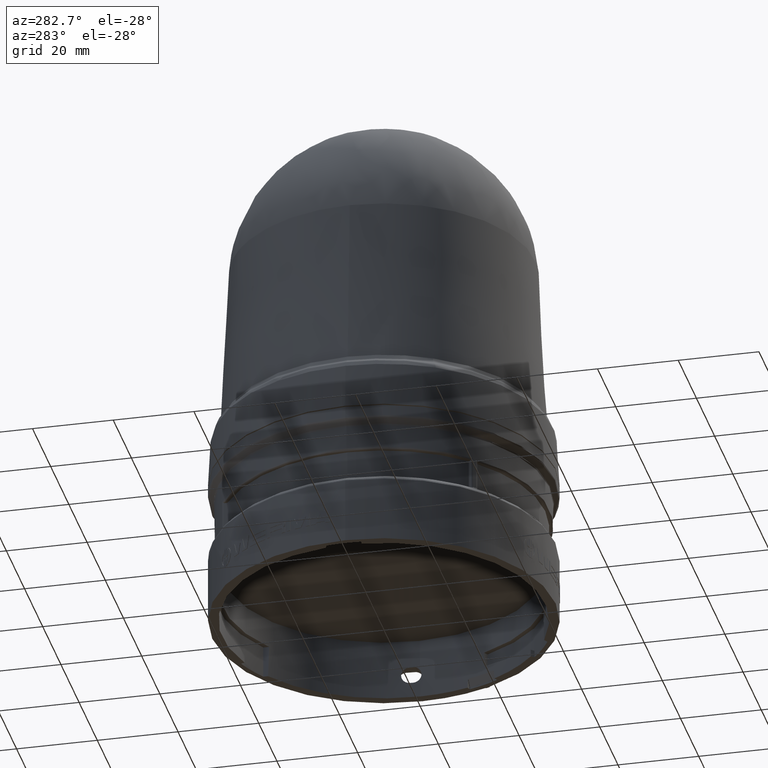
[diagram: clean part render]
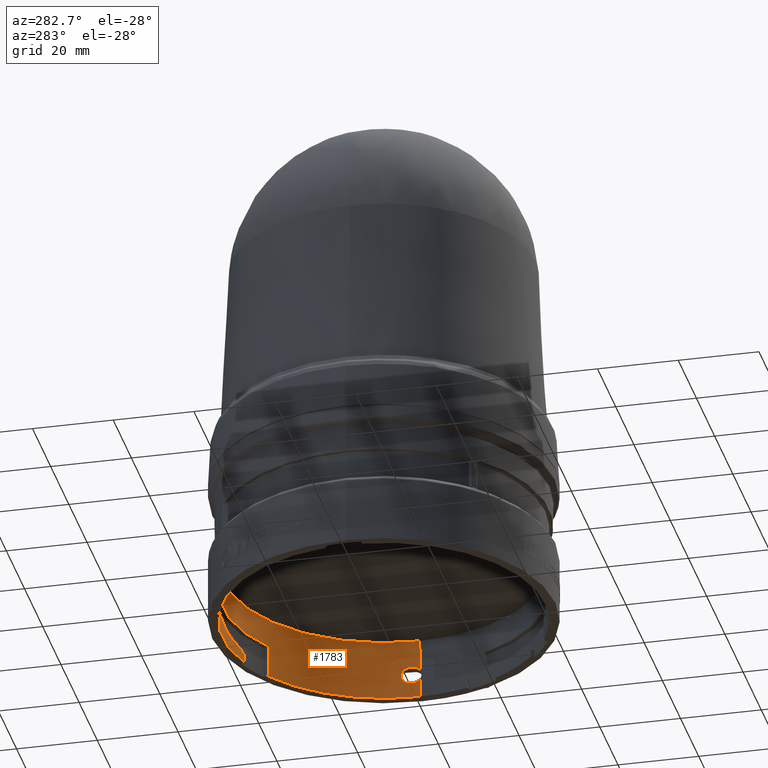
[diagram: same view with one face highlighted and labeled with its STEP entity id]
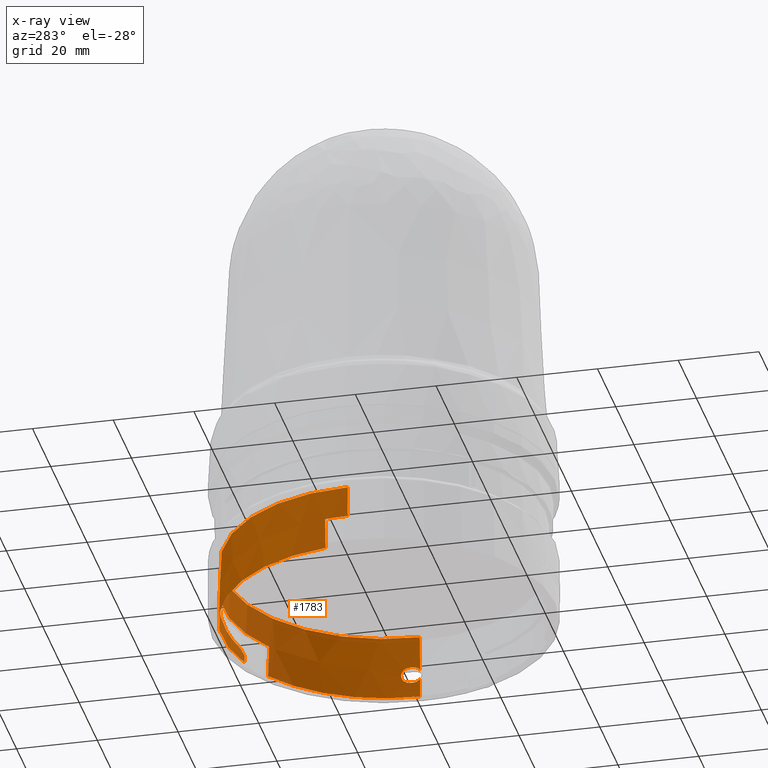
[diagram: x-ray of the same camera — body ghosted, the highlighted face saturated]
A machine part, auxiliary view. The second image highlights one B-rep face of the part: STEP entity #1783.
The next image is the same camera in x-ray: the body ghosted, the highlighted face saturated — about 0% of this face is hidden behind the body in this view.
In plain terms, the highlighted conical surface has half-angle 1.5 deg.
Its self-contained STEP definition (entity closure, byte-faithful):
#2 = CARTESIAN_POINT ( 'NONE',  ( 1.569823387576229523, 5.346336404449828969E-13, 0.1901694395941971871 ) ) ;
#238 = CARTESIAN_POINT ( 'NONE',  ( 1.570217815016414331, 0.03560541779438278209, 0.1601201028203899646 ) ) ;
#283 = ORIENTED_EDGE ( 'NONE', *, *, #11552, .F. ) ;
#390 = CIRCLE ( 'NONE', #11143, 1.566555615253799383 ) ;
#469 = CARTESIAN_POINT ( 'NONE',  ( 1.558357065111937390, 0.1689335536628853718, 0.2795355824626234442 ) ) ;
#606 = AXIS2_PLACEMENT_3D ( 'NONE', #8342, #6066, #13108 ) ;
#805 = DIRECTION ( 'NONE',  ( -0.0000000000000000000, -0.0000000000000000000, 1.000000000000000000 ) ) ;
#964 = DIRECTION ( 'NONE',  ( -1.000000000000000000, 5.329070518200751394E-15, 0.0000000000000000000 ) ) ;
#993 = EDGE_CURVE ( 'NONE', #6263, #2767, #4344, .T. ) ;
#1047 = CIRCLE ( 'NONE', #4022, 1.574803149606299524 ) ;
#1362 = CARTESIAN_POINT ( 'NONE',  ( 1.566401620839875886, 0.1165205276387088762, 0.1559363248810159974 ) ) ;
#1447 = ORIENTED_EDGE ( 'NONE', *, *, #8448, .F. ) ;
#1528 = VERTEX_POINT ( 'NONE', #6116 ) ;
#1638 = CIRCLE ( 'NONE', #2630, 1.574803149606299524 ) ;
#1674 = CARTESIAN_POINT ( 'NONE',  ( -1.553764139027304925, 0.2203134108240982769, 0.2099738792802667287 ) ) ;
#1686 = VERTEX_POINT ( 'NONE', #3348 ) ;
#1750 = EDGE_CURVE ( 'NONE', #3655, #10432, #11574, .T. ) ;
#1778 = EDGE_CURVE ( 'NONE', #14204, #5908, #8590, .T. ) ;
#1783 = ADVANCED_FACE ( 'NONE', ( #15461 ), #12095, .F. ) ;
#1914 = CARTESIAN_POINT ( 'NONE',  ( 0.5386143989380623998, 1.479830898875446277, 0.0000000000000000000 ) ) ;
#1934 = DIRECTION ( 'NONE',  ( -1.000000000000000000, -5.329070518200751394E-15, 0.0000000000000000000 ) ) ;
#2026 = CARTESIAN_POINT ( 'NONE',  ( 0.0000000000000000000, 0.0000000000000000000, 0.3188976377952746355 ) ) ;
#2234 = CARTESIAN_POINT ( 'NONE',  ( 1.557997538111242974, 0.1822574105215325757, 0.2360593705789818253 ) ) ;
#2348 = CARTESIAN_POINT ( 'NONE',  ( 1.569971502319823742, 0.003773679607253523343, 0.1845131657371271161 ) ) ;
#2357 = CIRCLE ( 'NONE', #606, 1.558308080901299242 ) ;
#2415 = EDGE_LOOP ( 'NONE', ( #13182, #12728, #3063, #11461, #9966, #14676, #3919, #15276, #13172, #6123, #10523, #283, #12562, #6850, #10164, #9377, #1447, #4859, #13883, #6090, #4490 ) ) ;
#2454 = CARTESIAN_POINT ( 'NONE',  ( 1.558361762461863087, 0.1817614729646070404, 0.2244586714382788561 ) ) ;
#2568 = CARTESIAN_POINT ( 'NONE',  ( 0.8562051308038146624, 1.321710155062426617, -7.000360483764674127E-16 ) ) ;
#2629 = EDGE_CURVE ( 'NONE', #3300, #9674, #5074, .T. ) ;
#2630 = AXIS2_PLACEMENT_3D ( 'NONE', #9304, #8141, #10639 ) ;
#2672 = CARTESIAN_POINT ( 'NONE',  ( 0.4620921807328655095, 1.502293176813364939, 0.1164017977704596141 ) ) ;
#2767 = VERTEX_POINT ( 'NONE', #4825 ) ;
#2801 = B_SPLINE_CURVE_WITH_KNOTS ( 'NONE', 3,
 ( #6191, #5005, #10962, #6115, #238, #3605, #11977, #9639, #2348, #2 ),
 .UNSPECIFIED., .F., .F.,
 ( 4, 2, 2, 2, 4 ),
 ( -0.002040417449596519835, -0.001529128808855139375, -0.001017840168113758699, -0.0005065515273723780222, 4.737113369002871055E-06 ),
 .UNSPECIFIED. ) ;
#3063 = ORIENTED_EDGE ( 'NONE', *, *, #1750, .T. ) ;
#3129 = CARTESIAN_POINT ( 'NONE',  ( 1.564961599337623799, 0.06832769904240786063, 0.3188976377961121877 ) ) ;
#3300 = VERTEX_POINT ( 'NONE', #9235 ) ;
#3348 = CARTESIAN_POINT ( 'NONE',  ( 1.567946737455557349, 0.09434308308408995147, 0.1535433070866146499 ) ) ;
#3390 = EDGE_CURVE ( 'NONE', #1528, #14259, #12825, .T. ) ;
#3404 = CARTESIAN_POINT ( 'NONE',  ( 1.566619778639487093, 0.02366761296486299959, 0.3061101219509367311 ) ) ;
#3481 = CARTESIAN_POINT ( 'NONE',  ( 1.566014551030754598, 0.04185663439607039543, 0.3147845723477316060 ) ) ;
#3555 = CARTESIAN_POINT ( 'NONE',  ( 1.565946615097836947, 0.1219888672934875407, 0.1573756110505205030 ) ) ;
#3556 = CARTESIAN_POINT ( 'NONE',  ( 1.557987513039037708, 0.1822519673514405580, 0.2364637713399350694 ) ) ;
#3605 = CARTESIAN_POINT ( 'NONE',  ( 1.570277640635747707, 0.02374652230714069043, 0.1663931393781888368 ) ) ;
#3635 = CARTESIAN_POINT ( 'NONE',  ( 1.567230106593897387, 0.1055353605916212884, 0.1540296523598476131 ) ) ;
#3655 = VERTEX_POINT ( 'NONE', #11305 ) ;
#3698 = VECTOR ( 'NONE', #4078, 39.37007874015748143 ) ;
#3711 = CARTESIAN_POINT ( 'NONE',  ( 1.558147699928209562, 0.1823389424317865548, 0.2300019895035482487 ) ) ;
#3835 = CARTESIAN_POINT ( 'NONE',  ( 1.557836132051899414, 0.1821697748946439488, 0.2425703064324291613 ) ) ;
#3849 = CARTESIAN_POINT ( 'NONE',  ( -0.1414532660216125948, 1.563986324801494687, 0.1692913385826774753 ) ) ;
#3888 = CARTESIAN_POINT ( 'NONE',  ( 0.5357935760567382744, 1.472080751704722967, 0.3149606299212602822 ) ) ;
#3902 = CARTESIAN_POINT ( 'NONE',  ( 0.8563788280332124137, 1.311759047454856164, 0.3149606299212597826 ) ) ;
#3919 = ORIENTED_EDGE ( 'NONE', *, *, #1778, .F. ) ;
#3925 = CARTESIAN_POINT ( 'NONE',  ( 0.4620921807328655095, 1.502293176813364939, 0.1164017977704596141 ) ) ;
#4022 = AXIS2_PLACEMENT_3D ( 'NONE', #6117, #10889, #15338 ) ;
#4078 = DIRECTION ( 'NONE',  ( 0.02617694830787394705, 3.205751595668355270E-18, -0.9996573249755572599 ) ) ;
#4151 = CARTESIAN_POINT ( 'NONE',  ( 0.06247196883098367348, 1.582898413163903450, 0.1514817862545803362 ) ) ;
#4191 = CIRCLE ( 'NONE', #14690, 1.570782476609455802 ) ;
#4344 = B_SPLINE_CURVE_WITH_KNOTS ( 'NONE', 3,
 ( #8810, #14888, #1674, #12401 ),
 .UNSPECIFIED., .F., .F.,
 ( 4, 4 ),
 ( 1.886480034287023725E-17, 0.008003993137107381917 ),
 .UNSPECIFIED. ) ;
#4387 = CARTESIAN_POINT ( 'NONE',  ( 1.558007563156380115, 0.1822628537749467204, 0.2356549698180285535 ) ) ;
#4418 = CARTESIAN_POINT ( 'NONE',  ( 0.8562051308038146624, 1.321710155062426617, -7.000360483764674127E-16 ) ) ;
#4420 = CARTESIAN_POINT ( 'NONE',  ( 1.566232863193194325, 0.03549652332048369024, 0.3123538018864563948 ) ) ;
#4490 = ORIENTED_EDGE ( 'NONE', *, *, #11088, .F. ) ;
#4581 = CARTESIAN_POINT ( 'NONE',  ( 1.567259035879648987, 0.003767260329692972715, 0.2880980799823065763 ) ) ;
#4694 = CIRCLE ( 'NONE', #13437, 1.566555615253799383 ) ;
#4730 = CARTESIAN_POINT ( 'NONE',  ( 1.558918840938141370, 0.1794310893212978375, 0.2135690720095118345 ) ) ;
#4825 = CARTESIAN_POINT ( 'NONE',  ( -1.550778771119048383, 0.2217694720418137977, 0.3149606299212597271 ) ) ;
#4859 = ORIENTED_EDGE ( 'NONE', *, *, #12874, .F. ) ;
#4958 = CARTESIAN_POINT ( 'NONE',  ( 0.0000000000000000000, 0.0000000000000000000, 0.1535433070866147609 ) ) ;
#4960 = CARTESIAN_POINT ( 'NONE',  ( 1.567946737455557349, 0.09434308308408995147, 0.1535433070866146499 ) ) ;
#4976 = CARTESIAN_POINT ( 'NONE',  ( 1.569287433349318306, 0.06851656903126565612, 0.1535433070967621993 ) ) ;
#5005 = CARTESIAN_POINT ( 'NONE',  ( 1.569584361084569446, 0.06171595365513127263, 0.1535433054102040840 ) ) ;
#5074 =( BOUNDED_CURVE ( )  B_SPLINE_CURVE ( 3, ( #3849, #4151, #8933, #3925 ),
 .UNSPECIFIED., .F., .F. ) 
 B_SPLINE_CURVE_WITH_KNOTS ( ( 4, 4 ),
 ( 4.602459612736128136, 4.991140418385966449 ),
 .UNSPECIFIED. ) 
 CURVE ( )  GEOMETRIC_REPRESENTATION_ITEM ( )  RATIONAL_B_SPLINE_CURVE ( ( 1.000000000000000000, 0.9874501759919782629, 0.9874501759919782629, 1.000000000000000000 ) ) 
 REPRESENTATION_ITEM ( '' )  );
#5089 = CARTESIAN_POINT ( 'NONE',  ( 1.560841265324977245, 0.1358110523108134737, 0.3093646980404562430 ) ) ;
#5200 = VECTOR ( 'NONE', #7321, 39.37007874015748854 ) ;
#5255 = CARTESIAN_POINT ( 'NONE',  ( 1.574803149606299524, 1.928577636452525103E-16, -3.346513792238722295E-15 ) ) ;
#5344 = AXIS2_PLACEMENT_3D ( 'NONE', #12027, #9762, #11883 ) ;
#5420 = B_SPLINE_CURVE_WITH_KNOTS ( 'NONE', 3,
 ( #9282, #4581, #14270, #14127, #3404, #4420, #3481, #12958, #7023, #15366 ),
 .UNSPECIFIED., .F., .F.,
 ( 4, 2, 2, 2, 4 ),
 ( -4.716694532790315780E-06, 0.0005048476128864433105, 0.001014411920305676937, 0.001523976227724909479, 0.002033540535144142021 ),
 .UNSPECIFIED. ) ;
#5464 = CARTESIAN_POINT ( 'NONE',  ( 1.569823387576229523, 5.346336404449828969E-13, 0.1901694395941971871 ) ) ;
#5695 = EDGE_CURVE ( 'NONE', #5908, #6263, #1638, .T. ) ;
#5708 = CARTESIAN_POINT ( 'NONE',  ( -1.574803149606299524, 0.0000000000000000000, -3.346513792238722295E-15 ) ) ;
#5908 = VERTEX_POINT ( 'NONE', #1914 ) ;
#6065 = CARTESIAN_POINT ( 'NONE',  ( -0.1415202265305539053, 1.560150159813455506, 0.3149606299212581728 ) ) ;
#6066 = DIRECTION ( 'NONE',  ( 0.0000000000000000000, 0.0000000000000000000, -1.000000000000000000 ) ) ;
#6090 = ORIENTED_EDGE ( 'NONE', *, *, #3390, .T. ) ;
#6115 = CARTESIAN_POINT ( 'NONE',  ( 1.570126010056660748, 0.04201395225668116962, 0.1576679916577781171 ) ) ;
#6116 = CARTESIAN_POINT ( 'NONE',  ( 1.563744766424319810, 0.09206414210048256830, 0.3188976377981049826 ) ) ;
#6117 = CARTESIAN_POINT ( 'NONE',  ( 0.0000000000000000000, 0.0000000000000000000, -1.673256896119361147E-15 ) ) ;
#6123 = ORIENTED_EDGE ( 'NONE', *, *, #11916, .F. ) ;
#6171 = EDGE_CURVE ( 'NONE', #10668, #15149, #390, .T. ) ;
#6191 = CARTESIAN_POINT ( 'NONE',  ( 1.569287433349318306, 0.06851656903126565612, 0.1535433070967621993 ) ) ;
#6193 = CARTESIAN_POINT ( 'NONE',  ( 1.558842278110692758, 0.1621526913852647800, 0.2884597080009740355 ) ) ;
#6263 = VERTEX_POINT ( 'NONE', #7860 ) ;
#6498 = CARTESIAN_POINT ( 'NONE',  ( 1.563076448925856399, 0.1034157711579235667, 0.3188976377952768559 ) ) ;
#6632 = EDGE_CURVE ( 'NONE', #12612, #14607, #2801, .T. ) ;
#6720 = VECTOR ( 'NONE', #11075, 39.37007874015748143 ) ;
#6850 = ORIENTED_EDGE ( 'NONE', *, *, #13045, .F. ) ;
#6997 = VECTOR ( 'NONE', #12739, 39.37007874015748143 ) ;
#7023 = CARTESIAN_POINT ( 'NONE',  ( 1.565257561397445318, 0.06154919155443780432, 0.3188976383406356696 ) ) ;
#7245 = DIRECTION ( 'NONE',  ( 0.0000000000000000000, 0.0000000000000000000, -1.000000000000000000 ) ) ;
#7321 = DIRECTION ( 'NONE',  ( 0.0004595154828282965709, 0.02632562437997153226, -0.9996533150780453347 ) ) ;
#7322 = CARTESIAN_POINT ( 'NONE',  ( 1.563471029493186171, 0.1471515221971412823, 0.1691753180497034270 ) ) ;
#7450 = CARTESIAN_POINT ( 'NONE',  ( 1.560094390015606569, 0.1455629713987400542, 0.3038251860371380397 ) ) ;
#7464 = CARTESIAN_POINT ( 'NONE',  ( 0.4875912066174049042, 1.494870595237814515, 0.1010461183759971682 ) ) ;
#7479 = LINE ( 'NONE', #8725, #6720 ) ;
#7860 = CARTESIAN_POINT ( 'NONE',  ( -1.559724129812271487, 0.2174065290907178372, -4.712466231795820080E-16 ) ) ;
#7896 = DIRECTION ( 'NONE',  ( -0.0000000000000000000, -0.0000000000000000000, 1.000000000000000000 ) ) ;
#8141 = DIRECTION ( 'NONE',  ( -0.0000000000000000000, -0.0000000000000000000, 1.000000000000000000 ) ) ;
#8257 = VERTEX_POINT ( 'NONE', #10456 ) ;
#8321 = EDGE_CURVE ( 'NONE', #3655, #9140, #2357, .T. ) ;
#8342 = CARTESIAN_POINT ( 'NONE',  ( 0.0000000000000000000, 0.0000000000000000000, 0.6299212598425202314 ) ) ;
#8448 = EDGE_CURVE ( 'NONE', #12549, #1686, #13784, .T. ) ;
#8498 = CARTESIAN_POINT ( 'NONE',  ( 1.562946284937695163, 0.1517030157349649744, 0.1725073608032914874 ) ) ;
#8590 = LINE ( 'NONE', #3888, #10097 ) ;
#8695 = CARTESIAN_POINT ( 'NONE',  ( 1.557876068457340057, 0.1768265862673454869, 0.2644843926412619450 ) ) ;
#8721 = DIRECTION ( 'NONE',  ( -1.000000000000000000, 0.0000000000000000000, 0.0000000000000000000 ) ) ;
#8725 = CARTESIAN_POINT ( 'NONE',  ( 1.574803149606299524, 1.928577636452525103E-16, -3.346513792238722295E-15 ) ) ;
#8810 = CARTESIAN_POINT ( 'NONE',  ( -1.559724129812271487, 0.2174065290907178372, -4.712466231795820080E-16 ) ) ;
#8848 = CARTESIAN_POINT ( 'NONE',  ( 1.557977487939764760, 0.1822465242646705563, 0.2368681721008843444 ) ) ;
#8933 = CARTESIAN_POINT ( 'NONE',  ( 0.2662106692496871707, 1.562072671103497790, 0.1336278758841706882 ) ) ;
#9140 = VERTEX_POINT ( 'NONE', #11063 ) ;
#9235 = CARTESIAN_POINT ( 'NONE',  ( -0.1414532660216125948, 1.563986324801494687, 0.1692913385826774753 ) ) ;
#9253 = CARTESIAN_POINT ( 'NONE',  ( 1.574803149606299524, 1.928577636452525103E-16, -1.673256896119361147E-15 ) ) ;
#9282 = CARTESIAN_POINT ( 'NONE',  ( 1.567406540200193543, 1.542948463798283155E-16, 0.2824651172410347910 ) ) ;
#9304 = CARTESIAN_POINT ( 'NONE',  ( 0.0000000000000000000, 0.0000000000000000000, 0.0000000000000000000 ) ) ;
#9377 = ORIENTED_EDGE ( 'NONE', *, *, #12020, .F. ) ;
#9444 = VERTEX_POINT ( 'NONE', #9253 ) ;
#9477 = B_SPLINE_CURVE_WITH_KNOTS ( 'NONE', 3,
 ( #14274, #3556, #2234, #13110 ),
 .UNSPECIFIED., .F., .F.,
 ( 4, 4 ),
 ( 0.0000000000000000000, 0.9999897383570733878 ),
 .UNSPECIFIED. ) ;
#9515 = CARTESIAN_POINT ( 'NONE',  ( 1.561422847953388926, 0.1640301996053593336, 0.1836841088673638323 ) ) ;
#9572 = CARTESIAN_POINT ( 'NONE',  ( 1.557977487939764760, 0.1822465242646705563, 0.2368681721008843444 ) ) ;
#9587 = CARTESIAN_POINT ( 'NONE',  ( 1.564994254154159048, 0.1324818203802722028, 0.1611641897276052393 ) ) ;
#9639 = CARTESIAN_POINT ( 'NONE',  ( 1.570092385521066669, 0.008149539467509025331, 0.1793927015656869850 ) ) ;
#9669 = CARTESIAN_POINT ( 'NONE',  ( 1.558007563156380115, 0.1822628537749467204, 0.2356549698180285535 ) ) ;
#9674 = VERTEX_POINT ( 'NONE', #15080 ) ;
#9762 = DIRECTION ( 'NONE',  ( 0.0000000000000000000, 0.0000000000000000000, -1.000000000000000000 ) ) ;
#9859 = CARTESIAN_POINT ( 'NONE',  ( 0.8562629608622959188, 1.318397073230928473, 0.1049870015308237842 ) ) ;
#9871 = CARTESIAN_POINT ( 'NONE',  ( 1.558156133760826956, 0.1719278887313833992, 0.2746633534979200375 ) ) ;
#9933 = CARTESIAN_POINT ( 'NONE',  ( 0.8563788280332124137, 1.311759047454856164, 0.3149606299212597826 ) ) ;
#9956 = CARTESIAN_POINT ( 'NONE',  ( 0.5128940351107276197, 1.486804497037890194, 0.08568893720662063007 ) ) ;
#9966 = ORIENTED_EDGE ( 'NONE', *, *, #993, .F. ) ;
#10097 = VECTOR ( 'NONE', #13428, 39.37007874015748143 ) ;
#10164 = ORIENTED_EDGE ( 'NONE', *, *, #6632, .F. ) ;
#10200 = CARTESIAN_POINT ( 'NONE',  ( 0.0000000000000000000, 0.0000000000000000000, 0.3149606299212601157 ) ) ;
#10220 = EDGE_CURVE ( 'NONE', #9444, #14845, #1047, .T. ) ;
#10322 = EDGE_CURVE ( 'NONE', #1528, #13280, #15110, .T. ) ;
#10432 = VERTEX_POINT ( 'NONE', #12831 ) ;
#10456 = CARTESIAN_POINT ( 'NONE',  ( 1.567406540200193543, 1.542948463798283155E-16, 0.2824651172410347910 ) ) ;
#10523 = ORIENTED_EDGE ( 'NONE', *, *, #6171, .F. ) ;
#10639 = DIRECTION ( 'NONE',  ( -1.000000000000000000, 0.0000000000000000000, 0.0000000000000000000 ) ) ;
#10668 = VERTEX_POINT ( 'NONE', #3902 ) ;
#10691 = CARTESIAN_POINT ( 'NONE',  ( 1.559266891352248718, 0.1776453626000259745, 0.2081706981462465300 ) ) ;
#10889 = DIRECTION ( 'NONE',  ( -0.0000000000000000000, -0.0000000000000000000, 1.000000000000000000 ) ) ;
#10916 = CARTESIAN_POINT ( 'NONE',  ( 1.567607883830523630, 0.09997470353227808082, 0.1535433070866143168 ) ) ;
#10962 = CARTESIAN_POINT ( 'NONE',  ( 1.569808337673071597, 0.05506033067890178656, 0.1543979581384798405 ) ) ;
#11045 = CARTESIAN_POINT ( 'NONE',  ( 1.559128193089488690, 0.1583383256491528446, 0.2925739428422881594 ) ) ;
#11060 = CARTESIAN_POINT ( 'NONE',  ( 0.5379844249744905049, 1.478100059635687913, 0.07034011164407284744 ) ) ;
#11063 = CARTESIAN_POINT ( 'NONE',  ( 1.558308080901299242, 0.0000000000000000000, 0.6299212598425202314 ) ) ;
#11073 = LINE ( 'NONE', #6065, #5200 ) ;
#11075 = DIRECTION ( 'NONE',  ( 0.02617694830787394705, 3.205751595668355270E-18, -0.9996573249755572599 ) ) ;
#11088 = EDGE_CURVE ( 'NONE', #8257, #14259, #5420, .T. ) ;
#11120 = CARTESIAN_POINT ( 'NONE',  ( 1.557775104424881984, 0.1814107377638094210, 0.2482664753659760692 ) ) ;
#11143 = AXIS2_PLACEMENT_3D ( 'NONE', #10200, #805, #964 ) ;
#11305 = CARTESIAN_POINT ( 'NONE',  ( -1.558308080901299242, 1.908377003361230864E-16, 0.6299212598425202314 ) ) ;
#11361 = AXIS2_PLACEMENT_3D ( 'NONE', #2026, #15004, #12830 ) ;
#11461 = ORIENTED_EDGE ( 'NONE', *, *, #14659, .F. ) ;
#11552 = EDGE_CURVE ( 'NONE', #14845, #10668, #12133, .T. ) ;
#11574 = LINE ( 'NONE', #5708, #6997 ) ;
#11883 = DIRECTION ( 'NONE',  ( -1.000000000000000000, 0.0000000000000000000, 0.0000000000000000000 ) ) ;
#11916 = EDGE_CURVE ( 'NONE', #15149, #3300, #11073, .T. ) ;
#11977 = CARTESIAN_POINT ( 'NONE',  ( 1.570246939615872694, 0.01814350922947211009, 0.1702953692029767485 ) ) ;
#12020 = EDGE_CURVE ( 'NONE', #1686, #12612, #4191, .T. ) ;
#12027 = CARTESIAN_POINT ( 'NONE',  ( 0.0000000000000000000, 0.0000000000000000000, -3.346513792238722295E-15 ) ) ;
#12086 = CARTESIAN_POINT ( 'NONE',  ( 1.564496445458701146, 0.1375222649625941207, 0.1635061824002744524 ) ) ;
#12095 = CONICAL_SURFACE ( 'NONE', #5344, 1.574803149606299524, 0.02617993877991574292 ) ;
#12133 = B_SPLINE_CURVE_WITH_KNOTS ( 'NONE', 3,
 ( #2568, #9859, #14618, #9933 ),
 .UNSPECIFIED., .F., .F.,
 ( 4, 4 ),
 ( 2.133645700627506019E-17, 0.008003993137107392325 ),
 .UNSPECIFIED. ) ;
#12401 = CARTESIAN_POINT ( 'NONE',  ( -1.550778771119048383, 0.2217694720418137977, 0.3149606299212597271 ) ) ;
#12549 = VERTEX_POINT ( 'NONE', #4387 ) ;
#12562 = ORIENTED_EDGE ( 'NONE', *, *, #10220, .F. ) ;
#12612 = VERTEX_POINT ( 'NONE', #4976 ) ;
#12728 = ORIENTED_EDGE ( 'NONE', *, *, #8321, .F. ) ;
#12739 = DIRECTION ( 'NONE',  ( -0.02617694830787394705, 0.0000000000000000000, -0.9996573249755572599 ) ) ;
#12825 = CIRCLE ( 'NONE', #11361, 1.566452521074393367 ) ;
#12830 = DIRECTION ( 'NONE',  ( -1.000000000000000000, 0.0000000000000000000, 0.0000000000000000000 ) ) ;
#12831 = CARTESIAN_POINT ( 'NONE',  ( -1.566555615253799383, 0.0000000000000000000, 0.3149606299212601157 ) ) ;
#12874 = EDGE_CURVE ( 'NONE', #13280, #12549, #9477, .T. ) ;
#12936 = CARTESIAN_POINT ( 'NONE',  ( -0.1415202265305538776, 1.560150159813455506, 0.3149606299212602267 ) ) ;
#12958 = CARTESIAN_POINT ( 'NONE',  ( 1.565525903707593924, 0.05490331191411181033, 0.3180490585525229119 ) ) ;
#13045 = EDGE_CURVE ( 'NONE', #14607, #9444, #7479, .T. ) ;
#13108 = DIRECTION ( 'NONE',  ( -1.000000000000000000, 0.0000000000000000000, 1.753085944394389802E-16 ) ) ;
#13110 = CARTESIAN_POINT ( 'NONE',  ( 1.558007563156380115, 0.1822628537749467204, 0.2356549698180285535 ) ) ;
#13172 = ORIENTED_EDGE ( 'NONE', *, *, #2629, .F. ) ;
#13182 = ORIENTED_EDGE ( 'NONE', *, *, #14276, .F. ) ;
#13184 = CARTESIAN_POINT ( 'NONE',  ( 1.560441718064182970, 0.1707698202361150330, 0.1929224711002252013 ) ) ;
#13280 = VERTEX_POINT ( 'NONE', #9572 ) ;
#13428 = DIRECTION ( 'NONE',  ( 0.008953043612087664346, 0.02459828515960317194, -0.9996573249755572599 ) ) ;
#13437 = AXIS2_PLACEMENT_3D ( 'NONE', #13830, #7896, #1934 ) ;
#13605 = CARTESIAN_POINT ( 'NONE',  ( 1.563744766424319810, 0.09206414210048256830, 0.3188976377981049826 ) ) ;
#13748 =( BOUNDED_CURVE ( )  B_SPLINE_CURVE ( 3, ( #2672, #7464, #9956, #11060 ),
 .UNSPECIFIED., .F., .T. ) 
 B_SPLINE_CURVE_WITH_KNOTS ( ( 4, 4 ),
 ( 4.695861330263715772, 4.746533166846696794 ),
 .UNSPECIFIED. ) 
 CURVE ( )  GEOMETRIC_REPRESENTATION_ITEM ( )  RATIONAL_B_SPLINE_CURVE ( ( 1.000000000000000000, 0.9997860418602765309, 0.9997860418602765309, 1.000000000000000000 ) ) 
 REPRESENTATION_ITEM ( '' )  );
#13784 = B_SPLINE_CURVE_WITH_KNOTS ( 'NONE', 3,
 ( #9669, #3711, #2454, #4730, #10691, #13184, #9515, #8498, #7322, #12086, #9587, #3555, #1362, #3635, #10916, #4960 ),
 .UNSPECIFIED., .F., .F.,
 ( 4, 2, 2, 2, 2, 2, 2, 4 ),
 ( 0.0000000000000000000, 0.0004242915121961627961, 0.0008485830243923255922, 0.001697166048784649666, 0.002121457560980811053, 0.002545749073176972223, 0.002970040585373133393, 0.003394332097569294996 ),
 .UNSPECIFIED. ) ;
#13830 = CARTESIAN_POINT ( 'NONE',  ( 0.0000000000000000000, 0.0000000000000000000, 0.3149606299212601157 ) ) ;
#13883 = ORIENTED_EDGE ( 'NONE', *, *, #10322, .F. ) ;
#14127 = CARTESIAN_POINT ( 'NONE',  ( 1.566793627057839311, 0.01805022312695437822, 0.3022010208695138367 ) ) ;
#14204 = VERTEX_POINT ( 'NONE', #14563 ) ;
#14205 = EDGE_CURVE ( 'NONE', #9674, #14204, #13748, .T. ) ;
#14259 = VERTEX_POINT ( 'NONE', #3129 ) ;
#14270 = CARTESIAN_POINT ( 'NONE',  ( 1.567112667732648346, 0.008126565568473386944, 0.2931831049448781479 ) ) ;
#14274 = CARTESIAN_POINT ( 'NONE',  ( 1.557977487939764760, 0.1822465242646705563, 0.2368681721008843444 ) ) ;
#14276 = EDGE_CURVE ( 'NONE', #9140, #8257, #15097, .T. ) ;
#14563 = CARTESIAN_POINT ( 'NONE',  ( 0.5379844249744905049, 1.478100059635687913, 0.07034011164407284744 ) ) ;
#14607 = VERTEX_POINT ( 'NONE', #5464 ) ;
#14618 = CARTESIAN_POINT ( 'NONE',  ( 0.8563208594092387438, 1.315080067698097599, 0.2099738792802666731 ) ) ;
#14627 = CARTESIAN_POINT ( 'NONE',  ( 1.562351600969319243, 0.1144652622698212052, 0.3169857553734190536 ) ) ;
#14659 = EDGE_CURVE ( 'NONE', #2767, #10432, #4694, .T. ) ;
#14676 = ORIENTED_EDGE ( 'NONE', *, *, #5695, .F. ) ;
#14690 = AXIS2_PLACEMENT_3D ( 'NONE', #4958, #7245, #8721 ) ;
#14777 = CARTESIAN_POINT ( 'NONE',  ( 1.557796046083039343, 0.1787342739072099729, 0.2592088678966863458 ) ) ;
#14845 = VERTEX_POINT ( 'NONE', #4418 ) ;
#14888 = CARTESIAN_POINT ( 'NONE',  ( -1.556745897988086824, 0.2188591098076766162, 0.1049870015308239785 ) ) ;
#15004 = DIRECTION ( 'NONE',  ( 0.0000000000000000000, 0.0000000000000000000, -1.000000000000000000 ) ) ;
#15080 = CARTESIAN_POINT ( 'NONE',  ( 0.4620921807328655095, 1.502293176813364939, 0.1164017977704596141 ) ) ;
#15097 = LINE ( 'NONE', #5255, #3698 ) ;
#15110 = B_SPLINE_CURVE_WITH_KNOTS ( 'NONE', 3,
 ( #13605, #6498, #14627, #5089, #7450, #11045, #6193, #469, #9871, #8695, #14777, #11120, #3835, #8848 ),
 .UNSPECIFIED., .F., .F.,
 ( 4, 2, 2, 2, 2, 2, 4 ),
 ( 1.198824662334552253E-14, 0.0008543201381860327046, 0.001708640276360077169, 0.002135800345447099510, 0.002562960414534121417, 0.002990120483621143757, 0.003417280552708166098 ),
 .UNSPECIFIED. ) ;
#15149 = VERTEX_POINT ( 'NONE', #12936 ) ;
#15276 = ORIENTED_EDGE ( 'NONE', *, *, #14205, .F. ) ;
#15338 = DIRECTION ( 'NONE',  ( -1.000000000000000000, 1.776356839400250465E-15, 0.0000000000000000000 ) ) ;
#15366 = CARTESIAN_POINT ( 'NONE',  ( 1.564961599337623799, 0.06832769904240786063, 0.3188976377961121877 ) ) ;
#15461 = FACE_OUTER_BOUND ( 'NONE', #2415, .T. ) ;